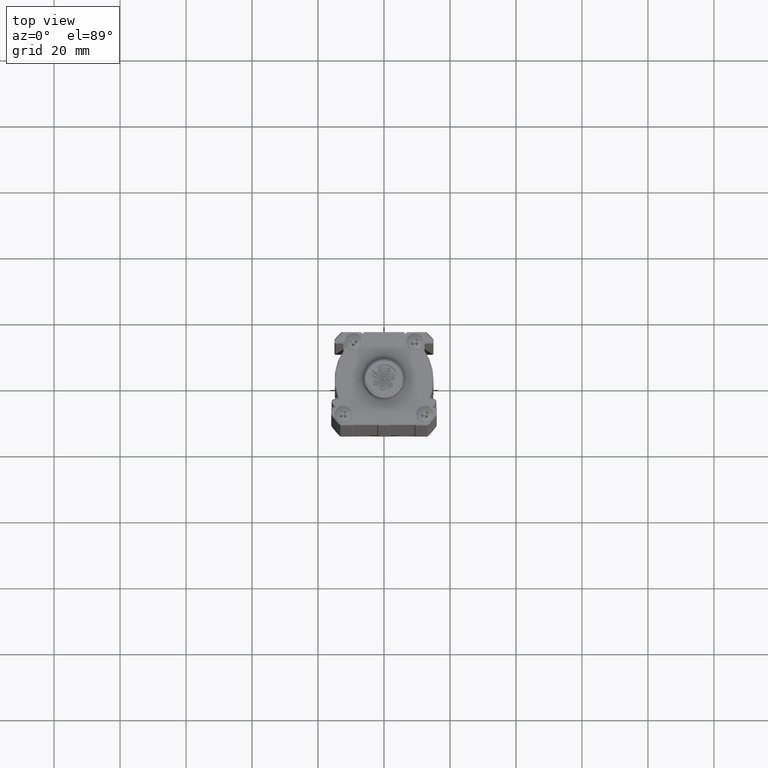
[diagram: clean part render]
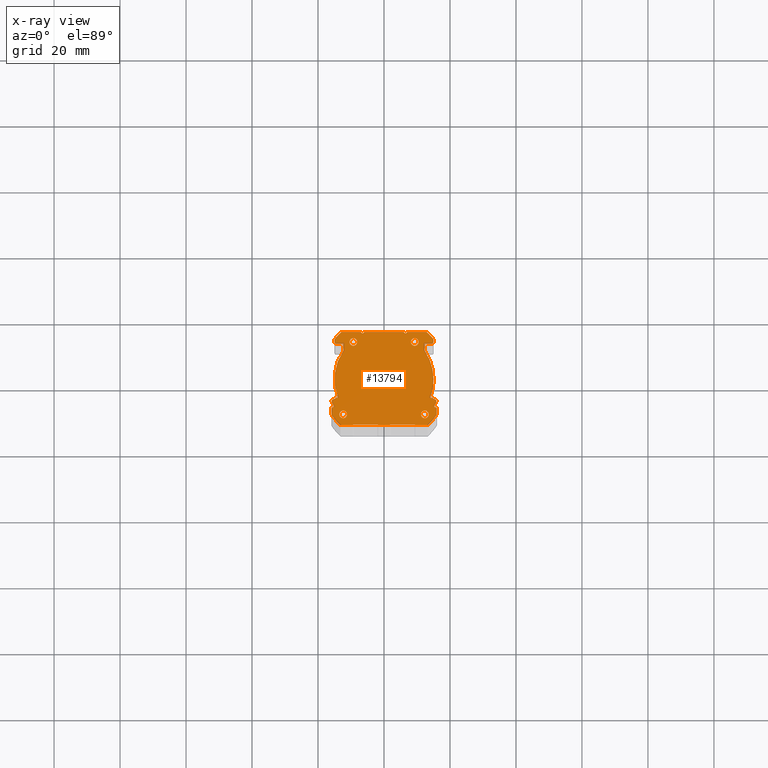
[diagram: x-ray — body ghosted, one internal face saturated and labeled with its STEP entity id]
A machine part, top view, then the same camera in x-ray: the body is ghosted and one INTERNAL B-rep face — a face not visible from any outside direction — is saturated and labeled: STEP entity #13794.
In plain terms, the highlighted planar face has unit normal (-0, 0, 1).
Its self-contained STEP definition (entity closure, byte-faithful):
#39 = VERTEX_POINT ( 'NONE', #2979 ) ;
#110 = CIRCLE ( 'NONE', #10561, 0.5000000000000004441 ) ;
#126 = VERTEX_POINT ( 'NONE', #14654 ) ;
#147 = DIRECTION ( 'NONE',  ( -1.000000000000000000, -4.000000000000000311E-15, 0.000000000000000000 ) ) ;
#184 = EDGE_CURVE ( 'NONE', #9761, #6531, #12120, .T. ) ;
#216 = CARTESIAN_POINT ( 'NONE',  ( 9.250000000000055067, -13.75000000000096279, -1.999999999998947064 ) ) ;
#245 = CIRCLE ( 'NONE', #10700, 17.25000000000000000 ) ;
#289 = DIRECTION ( 'NONE',  ( 0.000000000000000000, 0.000000000000000000, -1.000000000000000000 ) ) ;
#358 = EDGE_CURVE ( 'NONE', #14494, #454, #1087, .T. ) ;
#366 = CIRCLE ( 'NONE', #6925, 15.00000000000000000 ) ;
#399 = ORIENTED_EDGE ( 'NONE', *, *, #8969, .T. ) ;
#407 = DIRECTION ( 'NONE',  ( -0.000000000000000000, 0.000000000000000000, 1.000000000000000000 ) ) ;
#454 = VERTEX_POINT ( 'NONE', #8270 ) ;
#461 = CARTESIAN_POINT ( 'NONE',  ( -1.749999999999944045, -14.00000000000100719, -1.999999999998947064 ) ) ;
#565 = LINE ( 'NONE', #7844, #4774 ) ;
#584 = DIRECTION ( 'NONE',  ( -1.000000000000000000, -4.525365589504714880E-15, 0.000000000000000000 ) ) ;
#655 = EDGE_CURVE ( 'NONE', #3916, #11238, #16347, .T. ) ;
#811 = CARTESIAN_POINT ( 'NONE',  ( 0.000000000000000000, -9.999999999999999799E-13, -1.999999999998947064 ) ) ;
#880 = DIRECTION ( 'NONE',  ( 1.000000000000000000, 3.469446951953622866E-15, 0.000000000000000000 ) ) ;
#934 = LINE ( 'NONE', #18057, #10195 ) ;
#935 = VERTEX_POINT ( 'NONE', #13112 ) ;
#962 = VERTEX_POINT ( 'NONE', #4507 ) ;
#996 = LINE ( 'NONE', #6691, #9919 ) ;
#1016 = CARTESIAN_POINT ( 'NONE',  ( -15.37077917546502448, -6.655948282484231093, -1.999999999998947064 ) ) ;
#1025 = DIRECTION ( 'NONE',  ( -0.7071067811865446862, -0.7071067811865503483, 0.000000000000000000 ) ) ;
#1034 = CARTESIAN_POINT ( 'NONE',  ( 2.000000000000055067, -13.75000000000099121, -1.999999999998947064 ) ) ;
#1082 = CARTESIAN_POINT ( 'NONE',  ( 12.37500000000004441, -10.70000000000094786, -1.999999999998947064 ) ) ;
#1087 = CIRCLE ( 'NONE', #15431, 1.149999999999999911 ) ;
#1093 = EDGE_CURVE ( 'NONE', #935, #8959, #110, .T. ) ;
#1119 = CARTESIAN_POINT ( 'NONE',  ( 9.250000000000055067, -13.75000000000096279, -1.999999999998947064 ) ) ;
#1154 = DIRECTION ( 'NONE',  ( 1.000000000000000000, 4.000000000000000311E-15, 0.000000000000000000 ) ) ;
#1166 = VERTEX_POINT ( 'NONE', #2513 ) ;
#1239 = CARTESIAN_POINT ( 'NONE',  ( -13.95125516661981813, -5.510215901021905616, -1.999999999998947064 ) ) ;
#1316 = EDGE_CURVE ( 'NONE', #126, #1166, #8941, .T. ) ;
#1413 = EDGE_CURVE ( 'NONE', #4404, #10316, #13433, .T. ) ;
#1414 = ORIENTED_EDGE ( 'NONE', *, *, #2362, .F. ) ;
#1484 = VERTEX_POINT ( 'NONE', #13523 ) ;
#1518 = LINE ( 'NONE', #12924, #17380 ) ;
#1531 = ORIENTED_EDGE ( 'NONE', *, *, #10083, .F. ) ;
#1582 = FACE_OUTER_BOUND ( 'NONE', #5975, .T. ) ;
#1706 = CARTESIAN_POINT ( 'NONE',  ( 15.56614473970967438, -6.195695855757887394, -1.999999999998947064 ) ) ;
#1727 = CARTESIAN_POINT ( 'NONE',  ( 15.37077917546507599, -6.655948282484108525, -1.999999999998947064 ) ) ;
#1740 = AXIS2_PLACEMENT_3D ( 'NONE', #12716, #3096, #14409 ) ;
#1765 = DIRECTION ( 'NONE',  ( 4.000000000000000311E-15, -1.000000000000000000, 0.000000000000000000 ) ) ;
#1790 = VERTEX_POINT ( 'NONE', #18469 ) ;
#1817 = CARTESIAN_POINT ( 'NONE',  ( 15.87077917546507777, -6.655948282484106748, -1.999999999998947064 ) ) ;
#1901 = ORIENTED_EDGE ( 'NONE', *, *, #8111, .F. ) ;
#1915 = EDGE_CURVE ( 'NONE', #6531, #3093, #7012, .T. ) ;
#2112 = ORIENTED_EDGE ( 'NONE', *, *, #5324, .T. ) ;
#2115 = DIRECTION ( 'NONE',  ( 4.000000000000000311E-15, -1.000000000000000000, 0.000000000000000000 ) ) ;
#2130 = AXIS2_PLACEMENT_3D ( 'NONE', #9989, #4474, #3084 ) ;
#2164 = DIRECTION ( 'NONE',  ( -0.7071067811865392461, -0.7071067811865557884, 0.000000000000000000 ) ) ;
#2202 = VERTEX_POINT ( 'NONE', #1239 ) ;
#2256 = VECTOR ( 'NONE', #3636, 1000.000000000000000 ) ;
#2273 = VERTEX_POINT ( 'NONE', #461 ) ;
#2326 = CARTESIAN_POINT ( 'NONE',  ( -9.499999999999944933, -14.00000000000103739, -1.999999999998947064 ) ) ;
#2362 = EDGE_CURVE ( 'NONE', #13585, #1484, #3365, .T. ) ;
#2366 = VERTEX_POINT ( 'NONE', #7649 ) ;
#2417 = EDGE_CURVE ( 'NONE', #5908, #5442, #7921, .T. ) ;
#2428 = CARTESIAN_POINT ( 'NONE',  ( -8.150000000000044764, 11.24999999999896794, -1.999999999998947064 ) ) ;
#2513 = CARTESIAN_POINT ( 'NONE',  ( 12.94217910554474216, 14.24999999999905320, -1.999999999998947064 ) ) ;
#2560 = DIRECTION ( 'NONE',  ( 1.000000000000000000, 4.336808689942015369E-15, 0.000000000000000000 ) ) ;
#2583 = CARTESIAN_POINT ( 'NONE',  ( 16.02296623512452811, -6.389605076064695410, -1.999999999998947064 ) ) ;
#2643 = CARTESIAN_POINT ( 'NONE',  ( -6.500000000000056843, 14.24999999999897504, -1.999999999998947064 ) ) ;
#2687 = VECTOR ( 'NONE', #8360, 1000.000000000000114 ) ;
#2802 = LINE ( 'NONE', #7185, #16389 ) ;
#2804 = ORIENTED_EDGE ( 'NONE', *, *, #8733, .F. ) ;
#2896 = EDGE_CURVE ( 'NONE', #3126, #3309, #3795, .T. ) ;
#2902 = EDGE_CURVE ( 'NONE', #935, #2202, #8271, .T. ) ;
#2904 = ORIENTED_EDGE ( 'NONE', *, *, #9529, .F. ) ;
#2946 = ORIENTED_EDGE ( 'NONE', *, *, #11733, .T. ) ;
#2979 = CARTESIAN_POINT ( 'NONE',  ( 2.000000000000055067, -13.75000000000099121, -1.999999999998947064 ) ) ;
#2984 = DIRECTION ( 'NONE',  ( 1.000000000000000000, 4.000000000000000311E-15, 0.000000000000000000 ) ) ;
#3024 = EDGE_CURVE ( 'NONE', #15987, #3309, #11193, .T. ) ;
#3084 = DIRECTION ( 'NONE',  ( 1.000000000000000000, 3.469446951953611033E-15, 0.000000000000000000 ) ) ;
#3090 = DIRECTION ( 'NONE',  ( -0.000000000000000000, 0.000000000000000000, 1.000000000000000000 ) ) ;
#3093 = VERTEX_POINT ( 'NONE', #15743 ) ;
#3096 = DIRECTION ( 'NONE',  ( 0.000000000000000000, 0.000000000000000000, -1.000000000000000000 ) ) ;
#3118 = DIRECTION ( 'NONE',  ( -1.000000000000000000, -4.239272203583008159E-15, 0.000000000000000000 ) ) ;
#3126 = VERTEX_POINT ( 'NONE', #18358 ) ;
#3138 = CARTESIAN_POINT ( 'NONE',  ( 16.00000000000003553, -8.798818102450855605, -1.999999999998947064 ) ) ;
#3170 = LINE ( 'NONE', #17396, #5080 ) ;
#3172 = DIRECTION ( 'NONE',  ( 1.000000000000000000, 3.999999999999996367E-15, 0.000000000000000000 ) ) ;
#3180 = VECTOR ( 'NONE', #10808, 1000.000000000000000 ) ;
#3285 = DIRECTION ( 'NONE',  ( -0.7071067811865503483, 0.7071067811865446862, 0.000000000000000000 ) ) ;
#3296 = CIRCLE ( 'NONE', #17935, 15.00000000000000000 ) ;
#3309 = VERTEX_POINT ( 'NONE', #1706 ) ;
#3318 = CARTESIAN_POINT ( 'NONE',  ( 0.000000000000000000, -9.999999999999999799E-13, -1.999999999998947064 ) ) ;
#3365 = LINE ( 'NONE', #9058, #5835 ) ;
#3367 = EDGE_CURVE ( 'NONE', #39, #1790, #13663, .T. ) ;
#3471 = EDGE_CURVE ( 'NONE', #2273, #14697, #13847, .T. ) ;
#3506 = CARTESIAN_POINT ( 'NONE',  ( -15.00000000000004796, 12.06492851201259953, -1.999999999998947064 ) ) ;
#3616 = DIRECTION ( 'NONE',  ( -1.000000000000000000, -4.000000000000000311E-15, 0.000000000000000000 ) ) ;
#3636 = DIRECTION ( 'NONE',  ( -5.371400406822420547E-15, 1.000000000000000000, 0.000000000000000000 ) ) ;
#3654 = ORIENTED_EDGE ( 'NONE', *, *, #6078, .T. ) ;
#3673 = CIRCLE ( 'NONE', #18024, 1.149999999999999911 ) ;
#3795 = LINE ( 'NONE', #2583, #2687 ) ;
#3886 = VERTEX_POINT ( 'NONE', #2326 ) ;
#3916 = VERTEX_POINT ( 'NONE', #11179 ) ;
#3927 = AXIS2_PLACEMENT_3D ( 'NONE', #16488, #9351, #8220 ) ;
#3934 = CARTESIAN_POINT ( 'NONE',  ( -15.00000000000004441, 11.29999999999894023, -1.999999999998947064 ) ) ;
#3969 = ORIENTED_EDGE ( 'NONE', *, *, #17227, .F. ) ;
#3980 = CARTESIAN_POINT ( 'NONE',  ( -10.45000000000004370, 11.24999999999895905, -1.999999999998947064 ) ) ;
#4102 = DIRECTION ( 'NONE',  ( 0.000000000000000000, 0.000000000000000000, -1.000000000000000000 ) ) ;
#4167 = CARTESIAN_POINT ( 'NONE',  ( 0.000000000000000000, -9.999999999999999799E-13, -1.999999999998947064 ) ) ;
#4169 = CARTESIAN_POINT ( 'NONE',  ( 0.000000000000000000, -9.999999999999999799E-13, -1.999999999998947064 ) ) ;
#4198 = CARTESIAN_POINT ( 'NONE',  ( -15.82960840458337159, -6.854633305841933755, -1.999999999998947064 ) ) ;
#4238 = ORIENTED_EDGE ( 'NONE', *, *, #9599, .F. ) ;
#4250 = CARTESIAN_POINT ( 'NONE',  ( 14.99999999999995381, 11.29999999999906102, -1.999999999998947064 ) ) ;
#4319 = VECTOR ( 'NONE', #2164, 1000.000000000000000 ) ;
#4385 = VERTEX_POINT ( 'NONE', #17251 ) ;
#4398 = CARTESIAN_POINT ( 'NONE',  ( 0.000000000000000000, -9.999999999999999799E-13, -1.999999999998947064 ) ) ;
#4404 = VERTEX_POINT ( 'NONE', #5914 ) ;
#4438 = CARTESIAN_POINT ( 'NONE',  ( 15.82960840458342844, -6.854633305841807633, -1.999999999998947064 ) ) ;
#4474 = DIRECTION ( 'NONE',  ( -0.000000000000000000, 0.000000000000000000, 1.000000000000000000 ) ) ;
#4482 = FACE_BOUND ( 'NONE', #8699, .T. ) ;
#4494 = DIRECTION ( 'NONE',  ( -1.000000000000000000, -4.525365589504714880E-15, 0.000000000000000000 ) ) ;
#4507 = CARTESIAN_POINT ( 'NONE',  ( 15.00000000000000000, -9.400000000000000336E-13, -1.999999999998947064 ) ) ;
#4540 = CARTESIAN_POINT ( 'NONE',  ( 14.99999999999995026, 12.06492851201272209, -1.999999999998947064 ) ) ;
#4545 = CARTESIAN_POINT ( 'NONE',  ( -13.21221026172374380, -14.00000000000105160, -1.999999999998947064 ) ) ;
#4611 = ORIENTED_EDGE ( 'NONE', *, *, #17627, .F. ) ;
#4626 = DIRECTION ( 'NONE',  ( -0.000000000000000000, 0.000000000000000000, 1.000000000000000000 ) ) ;
#4650 = CARTESIAN_POINT ( 'NONE',  ( 12.94217910554474216, 14.24999999999905320, -1.999999999998947064 ) ) ;
#4703 = CIRCLE ( 'NONE', #15159, 19.25000000000000000 ) ;
#4766 = VECTOR ( 'NONE', #11037, 1000.000000000000000 ) ;
#4774 = VECTOR ( 'NONE', #7564, 1000.000000000000000 ) ;
#4790 = DIRECTION ( 'NONE',  ( 0.000000000000000000, 0.000000000000000000, -1.000000000000000000 ) ) ;
#4804 = DIRECTION ( 'NONE',  ( 1.000000000000000000, 3.469446951953611033E-15, 0.000000000000000000 ) ) ;
#4840 = VERTEX_POINT ( 'NONE', #6921 ) ;
#4904 = EDGE_CURVE ( 'NONE', #9692, #17463, #12539, .T. ) ;
#4916 = EDGE_CURVE ( 'NONE', #10316, #962, #3296, .T. ) ;
#4933 = CARTESIAN_POINT ( 'NONE',  ( 15.12531301981988285, -8.293817338987178545, -1.999999999998947064 ) ) ;
#5080 = VECTOR ( 'NONE', #11950, 1000.000000000000000 ) ;
#5100 = ORIENTED_EDGE ( 'NONE', *, *, #18047, .F. ) ;
#5102 = EDGE_LOOP ( 'NONE', ( #2946, #12373 ) ) ;
#5150 = VERTEX_POINT ( 'NONE', #15880 ) ;
#5153 = CARTESIAN_POINT ( 'NONE',  ( -1.999999999999944933, -13.75000000000100719, -1.999999999998947064 ) ) ;
#5324 = EDGE_CURVE ( 'NONE', #15943, #15987, #5981, .T. ) ;
#5381 = DIRECTION ( 'NONE',  ( 0.000000000000000000, 0.000000000000000000, -1.000000000000000000 ) ) ;
#5432 = CARTESIAN_POINT ( 'NONE',  ( 0.000000000000000000, -9.999999999999999799E-13, -1.999999999998947064 ) ) ;
#5434 = VECTOR ( 'NONE', #3616, 1000.000000000000000 ) ;
#5442 = VERTEX_POINT ( 'NONE', #3506 ) ;
#5606 = AXIS2_PLACEMENT_3D ( 'NONE', #7494, #4790, #584 ) ;
#5611 = DIRECTION ( 'NONE',  ( 0.000000000000000000, 0.000000000000000000, -1.000000000000000000 ) ) ;
#5612 = DIRECTION ( 'NONE',  ( 0.000000000000000000, 0.000000000000000000, -1.000000000000000000 ) ) ;
#5651 = VECTOR ( 'NONE', #3118, 1000.000000000000000 ) ;
#5725 = EDGE_CURVE ( 'NONE', #15010, #9644, #7988, .T. ) ;
#5835 = VECTOR ( 'NONE', #10832, 1000.000000000000000 ) ;
#5908 = VERTEX_POINT ( 'NONE', #3934 ) ;
#5914 = CARTESIAN_POINT ( 'NONE',  ( 12.29999999999995630, 10.79999999999905036, -1.999999999998947064 ) ) ;
#5975 = EDGE_LOOP ( 'NONE', ( #11444, #9051, #4611, #7394, #16876, #3969, #5100, #11024, #6812, #12111, #13591, #17263, #11304, #13475, #14556, #9533, #16040, #16545, #2804, #2112, #7868, #15895, #15420, #18517, #14946, #2904, #399, #6485, #15853, #6969, #1531, #11467, #9813, #1414, #1901, #15554, #11214, #7183, #15227, #4238 ) ) ;
#5981 = CIRCLE ( 'NONE', #16159, 0.4999999999999987232 ) ;
#6010 = AXIS2_PLACEMENT_3D ( 'NONE', #8979, #4102, #15339 ) ;
#6078 = EDGE_CURVE ( 'NONE', #17463, #9692, #16099, .T. ) ;
#6207 = DIRECTION ( 'NONE',  ( -1.000000000000000000, -4.525365589504714880E-15, 0.000000000000000000 ) ) ;
#6421 = CARTESIAN_POINT ( 'NONE',  ( -9.249999999999943157, -13.75000000000103562, -1.999999999998947064 ) ) ;
#6485 = ORIENTED_EDGE ( 'NONE', *, *, #17573, .F. ) ;
#6523 = EDGE_LOOP ( 'NONE', ( #10409, #3654 ) ) ;
#6531 = VERTEX_POINT ( 'NONE', #11390 ) ;
#6541 = VERTEX_POINT ( 'NONE', #11200 ) ;
#6586 = DIRECTION ( 'NONE',  ( -0.000000000000000000, 0.000000000000000000, 1.000000000000000000 ) ) ;
#6691 = CARTESIAN_POINT ( 'NONE',  ( 13.21221026172385393, -14.00000000000094680, -1.999999999998947064 ) ) ;
#6743 = LINE ( 'NONE', #12364, #8320 ) ;
#6812 = ORIENTED_EDGE ( 'NONE', *, *, #10708, .F. ) ;
#6849 = CARTESIAN_POINT ( 'NONE',  ( 15.37077917546507599, -6.655948282484108525, -1.999999999998947064 ) ) ;
#6873 = DIRECTION ( 'NONE',  ( 0.9205048534524410409, 0.3907311284892719949, 0.000000000000000000 ) ) ;
#6881 = DIRECTION ( 'NONE',  ( -1.000000000000000000, -4.000000000000003466E-15, 0.000000000000000000 ) ) ;
#6891 = EDGE_LOOP ( 'NONE', ( #15295, #14488 ) ) ;
#6896 = AXIS2_PLACEMENT_3D ( 'NONE', #8151, #6586, #2560 ) ;
#6917 = EDGE_CURVE ( 'NONE', #17556, #39, #15748, .T. ) ;
#6921 = CARTESIAN_POINT ( 'NONE',  ( 9.500000000000055067, -14.00000000000096101, -1.999999999998947064 ) ) ;
#6925 = AXIS2_PLACEMENT_3D ( 'NONE', #811, #13439, #12312 ) ;
#6969 = ORIENTED_EDGE ( 'NONE', *, *, #1316, .F. ) ;
#7012 = CIRCLE ( 'NONE', #10305, 19.25000000000000000 ) ;
#7067 = ORIENTED_EDGE ( 'NONE', *, *, #5725, .T. ) ;
#7160 = EDGE_CURVE ( 'NONE', #962, #3126, #7435, .T. ) ;
#7183 = ORIENTED_EDGE ( 'NONE', *, *, #10222, .F. ) ;
#7185 = CARTESIAN_POINT ( 'NONE',  ( 14.99999999999995026, 12.06492851201272209, -1.999999999998947064 ) ) ;
#7198 = DIRECTION ( 'NONE',  ( -1.000000000000000000, -3.999999999999998733E-15, 0.000000000000000000 ) ) ;
#7206 = VECTOR ( 'NONE', #1025, 1000.000000000000114 ) ;
#7233 = VECTOR ( 'NONE', #10246, 999.9999999999998863 ) ;
#7319 = AXIS2_PLACEMENT_3D ( 'NONE', #14578, #3090, #1765 ) ;
#7365 = AXIS2_PLACEMENT_3D ( 'NONE', #9012, #9373, #6207 ) ;
#7394 = ORIENTED_EDGE ( 'NONE', *, *, #10970, .F. ) ;
#7418 = EDGE_CURVE ( 'NONE', #16197, #15208, #565, .T. ) ;
#7420 = DIRECTION ( 'NONE',  ( -1.000000000000000000, -4.000000000000003466E-15, 0.000000000000000000 ) ) ;
#7435 = CIRCLE ( 'NONE', #9826, 15.00000000000000000 ) ;
#7494 = CARTESIAN_POINT ( 'NONE',  ( -12.37499999999995737, -10.70000000000104912, -1.999999999998947064 ) ) ;
#7564 = DIRECTION ( 'NONE',  ( -4.000000000000000311E-15, 1.000000000000000000, 0.000000000000000000 ) ) ;
#7649 = CARTESIAN_POINT ( 'NONE',  ( -15.12531301981981713, -8.293817338987308219, -1.999999999998947064 ) ) ;
#7769 = EDGE_CURVE ( 'NONE', #1790, #2273, #3170, .T. ) ;
#7798 = CARTESIAN_POINT ( 'NONE',  ( -12.37499999999995737, -10.70000000000104912, -1.999999999998947064 ) ) ;
#7844 = CARTESIAN_POINT ( 'NONE',  ( -12.30000000000004334, 10.79999999999895266, -1.999999999998947064 ) ) ;
#7868 = ORIENTED_EDGE ( 'NONE', *, *, #3024, .T. ) ;
#7921 = LINE ( 'NONE', #16466, #2256 ) ;
#7923 = DIRECTION ( 'NONE',  ( 1.000000000000000000, 3.469446951953611033E-15, 0.000000000000000000 ) ) ;
#7988 = CIRCLE ( 'NONE', #5606, 1.149999999999999911 ) ;
#8111 = EDGE_CURVE ( 'NONE', #5442, #13585, #12554, .T. ) ;
#8115 = CARTESIAN_POINT ( 'NONE',  ( -9.499999999999944933, -14.00000000000103739, -1.999999999998947064 ) ) ;
#8151 = CARTESIAN_POINT ( 'NONE',  ( 6.499999999999942268, 14.24999999999902656, -1.999999999998947064 ) ) ;
#8220 = DIRECTION ( 'NONE',  ( -1.000000000000000000, -4.525365589504714880E-15, 0.000000000000000000 ) ) ;
#8234 = DIRECTION ( 'NONE',  ( -0.000000000000000000, 0.000000000000000000, 1.000000000000000000 ) ) ;
#8270 = CARTESIAN_POINT ( 'NONE',  ( 11.22500000000004405, -10.70000000000095319, -1.999999999998947064 ) ) ;
#8271 = LINE ( 'NONE', #9589, #14925 ) ;
#8320 = VECTOR ( 'NONE', #15269, 1000.000000000000000 ) ;
#8360 = DIRECTION ( 'NONE',  ( 0.9205048534524441495, -0.3907311284892646674, -0.000000000000000000 ) ) ;
#8385 = VECTOR ( 'NONE', #1154, 1000.000000000000000 ) ;
#8395 = EDGE_CURVE ( 'NONE', #9644, #15010, #11672, .T. ) ;
#8455 = DIRECTION ( 'NONE',  ( 1.000000000000000000, 4.000000000000003466E-15, 0.000000000000000000 ) ) ;
#8594 = CARTESIAN_POINT ( 'NONE',  ( -9.300000000000045119, 11.24999999999896438, -1.999999999998947064 ) ) ;
#8608 = VERTEX_POINT ( 'NONE', #9162 ) ;
#8637 = CARTESIAN_POINT ( 'NONE',  ( -14.50000000000004619, 11.29999999999894200, -1.999999999998947064 ) ) ;
#8699 = EDGE_LOOP ( 'NONE', ( #7067, #14212 ) ) ;
#8733 = EDGE_CURVE ( 'NONE', #15943, #8985, #16188, .T. ) ;
#8796 = AXIS2_PLACEMENT_3D ( 'NONE', #6849, #13688, #880 ) ;
#8839 = EDGE_CURVE ( 'NONE', #5150, #3886, #10843, .T. ) ;
#8844 = CARTESIAN_POINT ( 'NONE',  ( 12.29999999999995630, 10.79999999999905036, -1.999999999998947064 ) ) ;
#8866 = EDGE_CURVE ( 'NONE', #8985, #9761, #934, .T. ) ;
#8867 = FACE_BOUND ( 'NONE', #6891, .T. ) ;
#8941 = LINE ( 'NONE', #4650, #9677 ) ;
#8959 = VERTEX_POINT ( 'NONE', #4198 ) ;
#8969 = EDGE_CURVE ( 'NONE', #8608, #9802, #10498, .T. ) ;
#8979 = CARTESIAN_POINT ( 'NONE',  ( 0.000000000000000000, -9.999999999999999799E-13, -1.999999999998947064 ) ) ;
#8985 = VERTEX_POINT ( 'NONE', #4933 ) ;
#9009 = DIRECTION ( 'NONE',  ( 0.000000000000000000, 0.000000000000000000, -1.000000000000000000 ) ) ;
#9012 = CARTESIAN_POINT ( 'NONE',  ( 9.299999999999954525, 11.24999999999903721, -1.999999999998947064 ) ) ;
#9051 = ORIENTED_EDGE ( 'NONE', *, *, #1093, .T. ) ;
#9058 = CARTESIAN_POINT ( 'NONE',  ( 12.94217910554474216, 14.24999999999905320, -1.999999999998947064 ) ) ;
#9162 = CARTESIAN_POINT ( 'NONE',  ( 14.49999999999995737, 10.79999999999905924, -1.999999999998947064 ) ) ;
#9312 = VECTOR ( 'NONE', #17937, 1000.000000000000000 ) ;
#9351 = DIRECTION ( 'NONE',  ( 0.000000000000000000, 0.000000000000000000, -1.000000000000000000 ) ) ;
#9373 = DIRECTION ( 'NONE',  ( 0.000000000000000000, 0.000000000000000000, -1.000000000000000000 ) ) ;
#9445 = CIRCLE ( 'NONE', #13340, 0.5000000000000004441 ) ;
#9529 = EDGE_CURVE ( 'NONE', #8608, #4404, #16351, .T. ) ;
#9533 = ORIENTED_EDGE ( 'NONE', *, *, #1915, .F. ) ;
#9587 = DIRECTION ( 'NONE',  ( -1.000000000000000000, -4.525365589504714880E-15, 0.000000000000000000 ) ) ;
#9589 = CARTESIAN_POINT ( 'NONE',  ( -16.02296623512447837, -6.389605076064824196, -1.999999999998947064 ) ) ;
#9590 = DIRECTION ( 'NONE',  ( -1.000000000000000000, -4.000000000000000311E-15, 0.000000000000000000 ) ) ;
#9599 = EDGE_CURVE ( 'NONE', #2202, #16197, #366, .T. ) ;
#9644 = VERTEX_POINT ( 'NONE', #15213 ) ;
#9677 = VECTOR ( 'NONE', #2984, 1000.000000000000000 ) ;
#9680 = EDGE_CURVE ( 'NONE', #3093, #4840, #996, .T. ) ;
#9692 = VERTEX_POINT ( 'NONE', #3980 ) ;
#9700 = AXIS2_PLACEMENT_3D ( 'NONE', #2643, #8234, #12551 ) ;
#9761 = VERTEX_POINT ( 'NONE', #3138 ) ;
#9782 = DIRECTION ( 'NONE',  ( 0.000000000000000000, 0.000000000000000000, -1.000000000000000000 ) ) ;
#9802 = VERTEX_POINT ( 'NONE', #4250 ) ;
#9813 = ORIENTED_EDGE ( 'NONE', *, *, #13226, .F. ) ;
#9826 = AXIS2_PLACEMENT_3D ( 'NONE', #5432, #13668, #11135 ) ;
#9919 = VECTOR ( 'NONE', #9590, 1000.000000000000000 ) ;
#9989 = CARTESIAN_POINT ( 'NONE',  ( 14.49999999999995559, 11.29999999999905747, -1.999999999998947064 ) ) ;
#10004 = EDGE_CURVE ( 'NONE', #16711, #13612, #13871, .T. ) ;
#10083 = EDGE_CURVE ( 'NONE', #13612, #126, #12884, .T. ) ;
#10155 = LINE ( 'NONE', #13144, #7233 ) ;
#10191 = PLANE ( 'NONE',  #7319 ) ;
#10195 = VECTOR ( 'NONE', #10935, 1000.000000000000114 ) ;
#10222 = EDGE_CURVE ( 'NONE', #15208, #4385, #1518, .T. ) ;
#10236 = CARTESIAN_POINT ( 'NONE',  ( -1.999999999999944933, -13.75000000000100719, -1.999999999998947064 ) ) ;
#10246 = DIRECTION ( 'NONE',  ( 0.8660254037844364872, 0.5000000000000037748, 0.000000000000000000 ) ) ;
#10273 = DIRECTION ( 'NONE',  ( 2.628599593177580075E-15, -1.000000000000000000, 0.000000000000000000 ) ) ;
#10305 = AXIS2_PLACEMENT_3D ( 'NONE', #3318, #9009, #7420 ) ;
#10316 = VERTEX_POINT ( 'NONE', #10673 ) ;
#10385 = DIRECTION ( 'NONE',  ( 1.000000000000000000, 4.000000000000003466E-15, 0.000000000000000000 ) ) ;
#10409 = ORIENTED_EDGE ( 'NONE', *, *, #4904, .T. ) ;
#10453 = EDGE_CURVE ( 'NONE', #11238, #3916, #11991, .T. ) ;
#10486 = AXIS2_PLACEMENT_3D ( 'NONE', #7798, #13514, #12108 ) ;
#10498 = CIRCLE ( 'NONE', #2130, 0.5000000000000004441 ) ;
#10561 = AXIS2_PLACEMENT_3D ( 'NONE', #1016, #13549, #7923 ) ;
#10673 = CARTESIAN_POINT ( 'NONE',  ( 12.29999999999996518, 8.585452812751569240, -1.999999999998947064 ) ) ;
#10700 = AXIS2_PLACEMENT_3D ( 'NONE', #15703, #14484, #3172 ) ;
#10708 = EDGE_CURVE ( 'NONE', #14697, #5150, #13091, .T. ) ;
#10791 = DIRECTION ( 'NONE',  ( 1.000000000000000000, 3.469446951953622866E-15, 0.000000000000000000 ) ) ;
#10808 = DIRECTION ( 'NONE',  ( 2.178356065844180249E-15, -1.000000000000000000, 0.000000000000000000 ) ) ;
#10832 = DIRECTION ( 'NONE',  ( 1.000000000000000000, 4.000000000000000311E-15, 0.000000000000000000 ) ) ;
#10843 = LINE ( 'NONE', #8115, #7206 ) ;
#10876 = CARTESIAN_POINT ( 'NONE',  ( 12.94217910554474216, 14.24999999999905320, -1.999999999998947064 ) ) ;
#10891 = VERTEX_POINT ( 'NONE', #4540 ) ;
#10935 = DIRECTION ( 'NONE',  ( 0.8660254037844404840, -0.4999999999999968359, -0.000000000000000000 ) ) ;
#10970 = EDGE_CURVE ( 'NONE', #12817, #2366, #10155, .T. ) ;
#11024 = ORIENTED_EDGE ( 'NONE', *, *, #8839, .F. ) ;
#11037 = DIRECTION ( 'NONE',  ( -0.7071067811865447972, 0.7071067811865502373, 0.000000000000000000 ) ) ;
#11135 = DIRECTION ( 'NONE',  ( -1.000000000000000000, -3.999999999999998733E-15, 0.000000000000000000 ) ) ;
#11179 = CARTESIAN_POINT ( 'NONE',  ( 10.44999999999995488, 11.24999999999904254, -1.999999999998947064 ) ) ;
#11193 = CIRCLE ( 'NONE', #8796, 0.4999999999999987232 ) ;
#11200 = CARTESIAN_POINT ( 'NONE',  ( -15.99999999999995914, -10.70338731430488188, -1.999999999998947064 ) ) ;
#11214 = ORIENTED_EDGE ( 'NONE', *, *, #14670, .T. ) ;
#11238 = VERTEX_POINT ( 'NONE', #16886 ) ;
#11304 = ORIENTED_EDGE ( 'NONE', *, *, #6917, .F. ) ;
#11390 = CARTESIAN_POINT ( 'NONE',  ( 16.00000000000004263, -10.70338731430477530, -1.999999999998947064 ) ) ;
#11444 = ORIENTED_EDGE ( 'NONE', *, *, #2902, .F. ) ;
#11467 = ORIENTED_EDGE ( 'NONE', *, *, #10004, .F. ) ;
#11522 = DIRECTION ( 'NONE',  ( -1.000000000000000000, -4.000000000000000311E-15, 0.000000000000000000 ) ) ;
#11604 = CIRCLE ( 'NONE', #13993, 19.25000000000000000 ) ;
#11672 = CIRCLE ( 'NONE', #10486, 1.149999999999999911 ) ;
#11733 = EDGE_CURVE ( 'NONE', #454, #14494, #3673, .T. ) ;
#11950 = DIRECTION ( 'NONE',  ( -1.000000000000000000, -4.000000000000000311E-15, 0.000000000000000000 ) ) ;
#11991 = CIRCLE ( 'NONE', #3927, 1.149999999999999911 ) ;
#12108 = DIRECTION ( 'NONE',  ( -1.000000000000000000, -4.525365589504714880E-15, 0.000000000000000000 ) ) ;
#12111 = ORIENTED_EDGE ( 'NONE', *, *, #3471, .F. ) ;
#12120 = LINE ( 'NONE', #14743, #3180 ) ;
#12312 = DIRECTION ( 'NONE',  ( 1.000000000000000000, 3.999999999999998733E-15, 0.000000000000000000 ) ) ;
#12364 = CARTESIAN_POINT ( 'NONE',  ( -15.99999999999996625, -8.798818102450983503, -1.999999999998947064 ) ) ;
#12373 = ORIENTED_EDGE ( 'NONE', *, *, #358, .T. ) ;
#12539 = CIRCLE ( 'NONE', #12823, 1.149999999999999911 ) ;
#12551 = DIRECTION ( 'NONE',  ( 1.000000000000000000, 4.336808689942015369E-15, 0.000000000000000000 ) ) ;
#12554 = CIRCLE ( 'NONE', #12859, 19.25000000000000000 ) ;
#12615 = CARTESIAN_POINT ( 'NONE',  ( -12.94217910554483630, 14.24999999999894840, -1.999999999998947064 ) ) ;
#12716 = CARTESIAN_POINT ( 'NONE',  ( -9.300000000000045119, 11.24999999999896438, -1.999999999998947064 ) ) ;
#12809 = DIRECTION ( 'NONE',  ( -1.000000000000000000, -4.525365589504714880E-15, 0.000000000000000000 ) ) ;
#12817 = VERTEX_POINT ( 'NONE', #15226 ) ;
#12823 = AXIS2_PLACEMENT_3D ( 'NONE', #8594, #12906, #12809 ) ;
#12859 = AXIS2_PLACEMENT_3D ( 'NONE', #4167, #15770, #8455 ) ;
#12884 = CIRCLE ( 'NONE', #6896, 0.4000000000000001887 ) ;
#12906 = DIRECTION ( 'NONE',  ( 0.000000000000000000, 0.000000000000000000, -1.000000000000000000 ) ) ;
#12924 = CARTESIAN_POINT ( 'NONE',  ( -15.00000000000004263, 10.79999999999894023, -1.999999999998947064 ) ) ;
#12990 = CIRCLE ( 'NONE', #9700, 0.4000000000000001887 ) ;
#13091 = LINE ( 'NONE', #6421, #9312 ) ;
#13112 = CARTESIAN_POINT ( 'NONE',  ( -15.56614473970962642, -6.195695855758012627, -1.999999999998947064 ) ) ;
#13144 = CARTESIAN_POINT ( 'NONE',  ( -15.99999999999996625, -8.798818102450983503, -1.999999999998947064 ) ) ;
#13226 = EDGE_CURVE ( 'NONE', #1484, #16711, #12990, .T. ) ;
#13340 = AXIS2_PLACEMENT_3D ( 'NONE', #8637, #407, #4804 ) ;
#13346 = CARTESIAN_POINT ( 'NONE',  ( 14.99999999999995559, 10.79999999999906279, -1.999999999998947064 ) ) ;
#13433 = LINE ( 'NONE', #8844, #13568 ) ;
#13439 = DIRECTION ( 'NONE',  ( 0.000000000000000000, 0.000000000000000000, -1.000000000000000000 ) ) ;
#13475 = ORIENTED_EDGE ( 'NONE', *, *, #17182, .F. ) ;
#13514 = DIRECTION ( 'NONE',  ( 0.000000000000000000, 0.000000000000000000, -1.000000000000000000 ) ) ;
#13523 = CARTESIAN_POINT ( 'NONE',  ( -6.900000000000057199, 14.24999999999897327, -1.999999999998947064 ) ) ;
#13545 = CARTESIAN_POINT ( 'NONE',  ( -12.30000000000004334, 10.79999999999895266, -1.999999999998947064 ) ) ;
#13549 = DIRECTION ( 'NONE',  ( -0.000000000000000000, 0.000000000000000000, 1.000000000000000000 ) ) ;
#13568 = VECTOR ( 'NONE', #2115, 1000.000000000000000 ) ;
#13585 = VERTEX_POINT ( 'NONE', #12615 ) ;
#13591 = ORIENTED_EDGE ( 'NONE', *, *, #7769, .F. ) ;
#13612 = VERTEX_POINT ( 'NONE', #13934 ) ;
#13663 = LINE ( 'NONE', #1034, #4319 ) ;
#13668 = DIRECTION ( 'NONE',  ( 0.000000000000000000, 0.000000000000000000, -1.000000000000000000 ) ) ;
#13688 = DIRECTION ( 'NONE',  ( -0.000000000000000000, 0.000000000000000000, 1.000000000000000000 ) ) ;
#13794 = ADVANCED_FACE ( 'NONE', ( #8867, #17310, #14401, #4482, #1582 ), #10191, .T. ) ;
#13847 = LINE ( 'NONE', #5153, #4766 ) ;
#13871 = LINE ( 'NONE', #10876, #8385 ) ;
#13934 = CARTESIAN_POINT ( 'NONE',  ( 6.099999999999942801, 14.24999999999902478, -1.999999999998947064 ) ) ;
#13993 = AXIS2_PLACEMENT_3D ( 'NONE', #4169, #9782, #6881 ) ;
#14052 = CARTESIAN_POINT ( 'NONE',  ( -13.52499999999995772, -10.70000000000105267, -1.999999999998947064 ) ) ;
#14180 = LINE ( 'NONE', #4545, #16416 ) ;
#14212 = ORIENTED_EDGE ( 'NONE', *, *, #8395, .T. ) ;
#14395 = CARTESIAN_POINT ( 'NONE',  ( -13.21221026172374380, -14.00000000000105160, -1.999999999998947064 ) ) ;
#14401 = FACE_BOUND ( 'NONE', #5102, .T. ) ;
#14409 = DIRECTION ( 'NONE',  ( -1.000000000000000000, -4.525365589504714880E-15, 0.000000000000000000 ) ) ;
#14484 = DIRECTION ( 'NONE',  ( 0.000000000000000000, 0.000000000000000000, -1.000000000000000000 ) ) ;
#14488 = ORIENTED_EDGE ( 'NONE', *, *, #655, .T. ) ;
#14494 = VERTEX_POINT ( 'NONE', #15758 ) ;
#14556 = ORIENTED_EDGE ( 'NONE', *, *, #9680, .F. ) ;
#14578 = CARTESIAN_POINT ( 'NONE',  ( 0.000000000000000000, -9.999999999999999799E-13, -1.999999999998947064 ) ) ;
#14596 = CARTESIAN_POINT ( 'NONE',  ( 0.000000000000000000, -9.999999999999999799E-13, -1.999999999998947064 ) ) ;
#14654 = CARTESIAN_POINT ( 'NONE',  ( 6.899999999999942624, 14.24999999999902833, -1.999999999998947064 ) ) ;
#14670 = EDGE_CURVE ( 'NONE', #5908, #4385, #9445, .T. ) ;
#14697 = VERTEX_POINT ( 'NONE', #10236 ) ;
#14743 = CARTESIAN_POINT ( 'NONE',  ( 16.00000000000003553, -8.798818102450855605, -1.999999999998947064 ) ) ;
#14925 = VECTOR ( 'NONE', #6873, 1000.000000000000114 ) ;
#14946 = ORIENTED_EDGE ( 'NONE', *, *, #1413, .F. ) ;
#15010 = VERTEX_POINT ( 'NONE', #14052 ) ;
#15159 = AXIS2_PLACEMENT_3D ( 'NONE', #14596, #289, #10385 ) ;
#15208 = VERTEX_POINT ( 'NONE', #13545 ) ;
#15213 = CARTESIAN_POINT ( 'NONE',  ( -11.22499999999995701, -10.70000000000104379, -1.999999999998947064 ) ) ;
#15226 = CARTESIAN_POINT ( 'NONE',  ( -15.99999999999996625, -8.798818102450983503, -1.999999999998947064 ) ) ;
#15227 = ORIENTED_EDGE ( 'NONE', *, *, #7418, .F. ) ;
#15269 = DIRECTION ( 'NONE',  ( -5.821643934155819978E-15, 1.000000000000000000, 0.000000000000000000 ) ) ;
#15295 = ORIENTED_EDGE ( 'NONE', *, *, #10453, .T. ) ;
#15339 = DIRECTION ( 'NONE',  ( -1.000000000000000000, -3.999999999999996367E-15, 0.000000000000000000 ) ) ;
#15420 = ORIENTED_EDGE ( 'NONE', *, *, #7160, .F. ) ;
#15431 = AXIS2_PLACEMENT_3D ( 'NONE', #1082, #5381, #9587 ) ;
#15554 = ORIENTED_EDGE ( 'NONE', *, *, #2417, .F. ) ;
#15703 = CARTESIAN_POINT ( 'NONE',  ( 0.000000000000000000, -9.999999999999999799E-13, -1.999999999998947064 ) ) ;
#15743 = CARTESIAN_POINT ( 'NONE',  ( 13.21221026172387525, -14.00000000000094680, -1.999999999998947064 ) ) ;
#15748 = LINE ( 'NONE', #216, #5651 ) ;
#15758 = CARTESIAN_POINT ( 'NONE',  ( 13.52500000000004476, -10.70000000000094431, -1.999999999998947064 ) ) ;
#15770 = DIRECTION ( 'NONE',  ( 0.000000000000000000, 0.000000000000000000, -1.000000000000000000 ) ) ;
#15821 = CARTESIAN_POINT ( 'NONE',  ( 9.500000000000055067, -14.00000000000096101, -1.999999999998947064 ) ) ;
#15853 = ORIENTED_EDGE ( 'NONE', *, *, #17932, .F. ) ;
#15880 = CARTESIAN_POINT ( 'NONE',  ( -9.249999999999943157, -13.75000000000103562, -1.999999999998947064 ) ) ;
#15895 = ORIENTED_EDGE ( 'NONE', *, *, #2896, .F. ) ;
#15943 = VERTEX_POINT ( 'NONE', #4438 ) ;
#15987 = VERTEX_POINT ( 'NONE', #1817 ) ;
#16013 = LINE ( 'NONE', #15821, #16068 ) ;
#16040 = ORIENTED_EDGE ( 'NONE', *, *, #184, .F. ) ;
#16068 = VECTOR ( 'NONE', #3285, 1000.000000000000114 ) ;
#16099 = CIRCLE ( 'NONE', #1740, 1.149999999999999911 ) ;
#16159 = AXIS2_PLACEMENT_3D ( 'NONE', #1727, #4626, #10791 ) ;
#16188 = CIRCLE ( 'NONE', #6010, 17.25000000000000000 ) ;
#16197 = VERTEX_POINT ( 'NONE', #16509 ) ;
#16347 = CIRCLE ( 'NONE', #7365, 1.149999999999999911 ) ;
#16351 = LINE ( 'NONE', #13346, #5434 ) ;
#16389 = VECTOR ( 'NONE', #10273, 1000.000000000000000 ) ;
#16416 = VECTOR ( 'NONE', #147, 1000.000000000000000 ) ;
#16466 = CARTESIAN_POINT ( 'NONE',  ( -15.00000000000004796, 12.06492851201259953, -1.999999999998947064 ) ) ;
#16488 = CARTESIAN_POINT ( 'NONE',  ( 9.299999999999954525, 11.24999999999903721, -1.999999999998947064 ) ) ;
#16509 = CARTESIAN_POINT ( 'NONE',  ( -12.30000000000003446, 8.585452812751462659, -1.999999999998947064 ) ) ;
#16545 = ORIENTED_EDGE ( 'NONE', *, *, #8866, .F. ) ;
#16711 = VERTEX_POINT ( 'NONE', #16976 ) ;
#16876 = ORIENTED_EDGE ( 'NONE', *, *, #18134, .F. ) ;
#16886 = CARTESIAN_POINT ( 'NONE',  ( 8.149999999999954170, 11.24999999999903366, -1.999999999998947064 ) ) ;
#16976 = CARTESIAN_POINT ( 'NONE',  ( -6.100000000000057376, 14.24999999999897682, -1.999999999998947064 ) ) ;
#17182 = EDGE_CURVE ( 'NONE', #4840, #17556, #16013, .T. ) ;
#17227 = EDGE_CURVE ( 'NONE', #17629, #6541, #4703, .T. ) ;
#17251 = CARTESIAN_POINT ( 'NONE',  ( -14.50000000000004441, 10.79999999999894378, -1.999999999998947064 ) ) ;
#17263 = ORIENTED_EDGE ( 'NONE', *, *, #3367, .F. ) ;
#17310 = FACE_BOUND ( 'NONE', #6523, .T. ) ;
#17322 = CARTESIAN_POINT ( 'NONE',  ( 12.37500000000004441, -10.70000000000094786, -1.999999999998947064 ) ) ;
#17380 = VECTOR ( 'NONE', #11522, 1000.000000000000000 ) ;
#17396 = CARTESIAN_POINT ( 'NONE',  ( 1.750000000000055955, -14.00000000000099298, -1.999999999998947064 ) ) ;
#17463 = VERTEX_POINT ( 'NONE', #2428 ) ;
#17556 = VERTEX_POINT ( 'NONE', #1119 ) ;
#17573 = EDGE_CURVE ( 'NONE', #10891, #9802, #2802, .T. ) ;
#17627 = EDGE_CURVE ( 'NONE', #2366, #8959, #245, .T. ) ;
#17629 = VERTEX_POINT ( 'NONE', #14395 ) ;
#17932 = EDGE_CURVE ( 'NONE', #1166, #10891, #11604, .T. ) ;
#17935 = AXIS2_PLACEMENT_3D ( 'NONE', #4398, #5611, #7198 ) ;
#17937 = DIRECTION ( 'NONE',  ( -1.000000000000000000, -3.760727796416992463E-15, 0.000000000000000000 ) ) ;
#18024 = AXIS2_PLACEMENT_3D ( 'NONE', #17322, #5612, #4494 ) ;
#18047 = EDGE_CURVE ( 'NONE', #3886, #17629, #14180, .T. ) ;
#18057 = CARTESIAN_POINT ( 'NONE',  ( 16.00000000000003553, -8.798818102450855605, -1.999999999998947064 ) ) ;
#18134 = EDGE_CURVE ( 'NONE', #6541, #12817, #6743, .T. ) ;
#18358 = CARTESIAN_POINT ( 'NONE',  ( 13.95125516661986254, -5.510215901021783935, -1.999999999998947064 ) ) ;
#18469 = CARTESIAN_POINT ( 'NONE',  ( 1.750000000000055955, -14.00000000000099298, -1.999999999998947064 ) ) ;
#18517 = ORIENTED_EDGE ( 'NONE', *, *, #4916, .F. ) ;